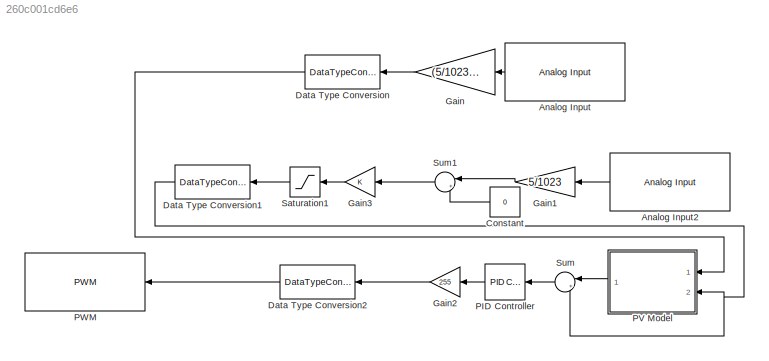
MODEL slx_260c001cd6e6
KIND model
CONFIG AbsTol = auto
CONFIG EnableMultiTasking = off
CONFIG FixedStep = auto
CONFIG MaxStep = auto
CONFIG MinStep = auto
CONFIG RelTol = 1e-3
CONFIG SampleTimeConstraint = Unconstrained
CONFIG SolverName = FixedStepAuto
CONFIG StartTime = 0.0
CONFIG StopTime = inf
BLOCK [Reference] Analog Input  REF=arduinolib/Analog Input
  NameLocation = top
  Ports = [0, 1]
  SourceBlock = arduinolib/Analog Input
  SourceProductBaseCode = ARDUINO
  SourceType = Arduino Analog Input
BLOCK [Reference] Analog Input2  REF=arduinolib/Analog Input
  NameLocation = top
  Ports = [0, 1]
  SourceBlock = arduinolib/Analog Input
  SourceProductBaseCode = ARDUINO
  SourceType = Arduino Analog Input
BLOCK [Constant] Constant
  NameLocation = top
  Value = 0
BLOCK [DataTypeConversion] Data Type Conversion
  NameLocation = top
  OutDataTypeStr = double
  RndMeth = Floor
  SaturateOnIntegerOverflow = off
BLOCK [DataTypeConversion] Data Type Conversion1
  NameLocation = top
  OutDataTypeStr = double
  RndMeth = Floor
  SaturateOnIntegerOverflow = off
BLOCK [DataTypeConversion] Data Type Conversion2
  NameLocation = top
  OutDataTypeStr = int16
  RndMeth = Floor
  SaturateOnIntegerOverflow = off
BLOCK [Gain] Gain
  Gain = (5/1023)*5.5
  NameLocation = top
BLOCK [Gain] Gain1
  Gain = 5/1023
  NameLocation = top
BLOCK [Gain] Gain2
  Gain = 255
  NameLocation = top
BLOCK [Gain] Gain3
  NameLocation = top
BLOCK [Reference] PID Controller  REF=pid_lib/PID Controller
  NameLocation = top
  Ports = [1, 1]
  SourceBlock = pid_lib/PID Controller
  SourceProductBaseCode = SL
  SourceType = PID 1dof
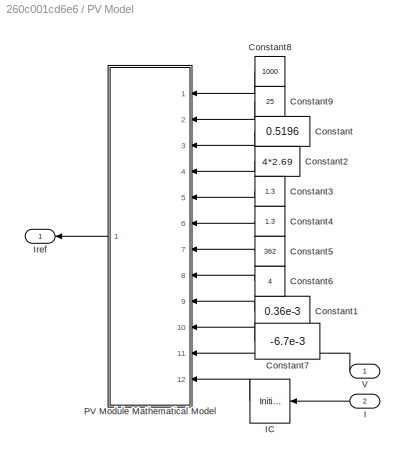
BLOCK [SubSystem] PV Model
  NameLocation = right
  Ports = [2, 1]
  RequestExecContextInheritance = off
BLOCK [Constant] PV Model/Constant
  Value = 0.5196
BLOCK [Constant] PV Model/Constant1
  Value = 0.36e-3
BLOCK [Constant] PV Model/Constant2
  Value = 4*2.69
BLOCK [Constant] PV Model/Constant3
  Value = 1.3
BLOCK [Constant] PV Model/Constant4
  Value = 1.3
BLOCK [Constant] PV Model/Constant5
  Value = 362
BLOCK [Constant] PV Model/Constant6
  Value = 4
BLOCK [Constant] PV Model/Constant7
  Value = -6.7e-3
BLOCK [Constant] PV Model/Constant8
  Value = 1000
BLOCK [Constant] PV Model/Constant9
  Value = 25
BLOCK [Inport] PV Model/I
  Port = 2
BLOCK [InitialCondition] PV Model/IC
  Value = 0
BLOCK [Outport] PV Model/Iref
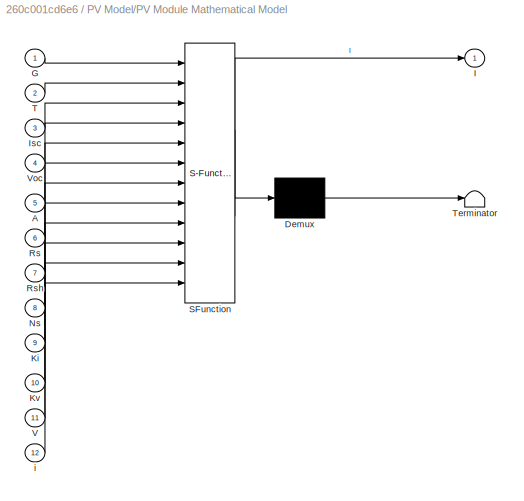
BLOCK [SubSystem] PV Model/PV Module Mathematical Model
  ErrorFcn = Stateflow.Translate.translate
  PermitHierarchicalResolution = ExplicitOnly
  Ports = [12, 1]
  RequestExecContextInheritance = off
  SFBlockType = MATLAB Function
  TreatAsAtomicUnit = on
BLOCK [Demux] PV Model/PV Module Mathematical Model/ Demux 
  Outputs = 1
  Ports = [1, 1]
BLOCK [S-Function] PV Model/PV Module Mathematical Model/ SFunction 
  EnableBusSupport = on
  FunctionName = sf_sfun
  PortCounts = [12 2]
  Ports = [12, 2]
  SFcnIsStateOwnerBlock = off
  SFunctionDeploymentMode = off
  Tag = Stateflow S-Function 1
BLOCK [Terminator] PV Model/PV Module Mathematical Model/ Terminator 
BLOCK [Inport] PV Model/PV Module Mathematical Model/A
  Port = 5
BLOCK [Inport] PV Model/PV Module Mathematical Model/G
BLOCK [Outport] PV Model/PV Module Mathematical Model/I
  VectorParamsAs1DForOutWhenUnconnected = off
BLOCK [Inport] PV Model/PV Module Mathematical Model/Isc
  Port = 3
BLOCK [Inport] PV Model/PV Module Mathematical Model/Ki
  Port = 9
BLOCK [Inport] PV Model/PV Module Mathematical Model/Kv
  Port = 10
BLOCK [Inport] PV Model/PV Module Mathematical Model/Ns
  Port = 8
BLOCK [Inport] PV Model/PV Module Mathematical Model/Rs
  Port = 6
BLOCK [Inport] PV Model/PV Module Mathematical Model/Rsh
  Port = 7
BLOCK [Inport] PV Model/PV Module Mathematical Model/T
  Port = 2
BLOCK [Inport] PV Model/PV Module Mathematical Model/V
  Port = 11
BLOCK [Inport] PV Model/PV Module Mathematical Model/Voc
  Port = 4
BLOCK [Inport] PV Model/PV Module Mathematical Model/i
  Port = 12
BLOCK [Inport] PV Model/V
BLOCK [Reference] PWM  REF=arduinolib/PWM
  NameLocation = top
  Ports = [1]
  SourceBlock = arduinolib/PWM
  SourceProductBaseCode = ARDUINO
  SourceType = Arduino PWM
BLOCK [Saturate] Saturation1
  LowerLimit = 0
  NameLocation = top
BLOCK [Sum] Sum
  Inputs = |+-
  NameLocation = top
  Ports = [2, 1]
BLOCK [Sum] Sum1
  Inputs = |+-
  NameLocation = top
  Ports = [2, 1]
LINE Analog Input2:1 -> Gain1:1
LINE Analog Input:1 -> Gain:1
LINE Constant:1 -> Sum1:2
NET Data Type Conversion1:1 -> PV Model:2, Sum:2
LINE Data Type Conversion2:1 -> PWM:1
LINE Data Type Conversion:1 -> PV Model:1
LINE Gain1:1 -> Sum1:1
LINE Gain2:1 -> Data Type Conversion2:1
LINE Gain3:1 -> Saturation1:1
LINE Gain:1 -> Data Type Conversion:1
LINE PID Controller:1 -> Gain2:1
LINE PV Model/Constant1:1 -> PV Model/PV Module Mathematical Model:9
LINE PV Model/Constant2:1 -> PV Model/PV Module Mathematical Model:4
LINE PV Model/Constant3:1 -> PV Model/PV Module Mathematical Model:5
LINE PV Model/Constant4:1 -> PV Model/PV Module Mathematical Model:6
LINE PV Model/Constant5:1 -> PV Model/PV Module Mathematical Model:7
LINE PV Model/Constant6:1 -> PV Model/PV Module Mathematical Model:8
LINE PV Model/Constant7:1 -> PV Model/PV Module Mathematical Model:10
LINE PV Model/Constant8:1 -> PV Model/PV Module Mathematical Model:1
LINE PV Model/Constant9:1 -> PV Model/PV Module Mathematical Model:2
LINE PV Model/Constant:1 -> PV Model/PV Module Mathematical Model:3
LINE PV Model/I:1 -> PV Model/IC:1
LINE PV Model/IC:1 -> PV Model/PV Module Mathematical Model:12
LINE PV Model/PV Module Mathematical Model:1 -> PV Model/Iref:1
LINE PV Model/V:1 -> PV Model/PV Module Mathematical Model:11
LINE PV Model:1 -> Sum:1
LINE Saturation1:1 -> Data Type Conversion1:1
LINE Sum1:1 -> Gain3:1
LINE Sum:1 -> PID Controller:1
note: NET lines group one-source signal fan-out (src -> all destinations, sorted); 1:1 wires keep LINE
CHART PV Model/PV Module
Mathematical Model states=1 transitions=1
  STATE_LABEL 'eML_blk_kernel()'
  STATE_LABEL 'SCRIPT:\nfunction I = fcn(G,T,Isc,Voc,A,Rs,Rsh,Ns,Ki,Kv,V,i)\n    \n    q = 1.6e-19;                          % Electron charge\n    k = 1.38e-23;                         % Boltzmann constant\n    Tcell = 273+T;                        % Cell temperature in Kelvin\n    vt=(A*k*Tcell*Ns)/q;                  % Thermal voltage Equation(5)\n        \n    Isc_T = Isc+((Isc*(Ki/100))*(T-25));  % Isc temperature ...<+367ch>'
CHART  states=0 transitions=0
